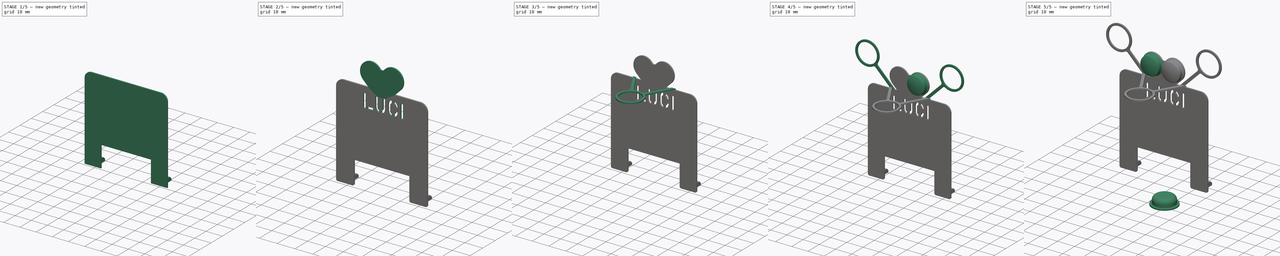
[diagram: build sequence overview — one tinted view per stage of 5, left to right]
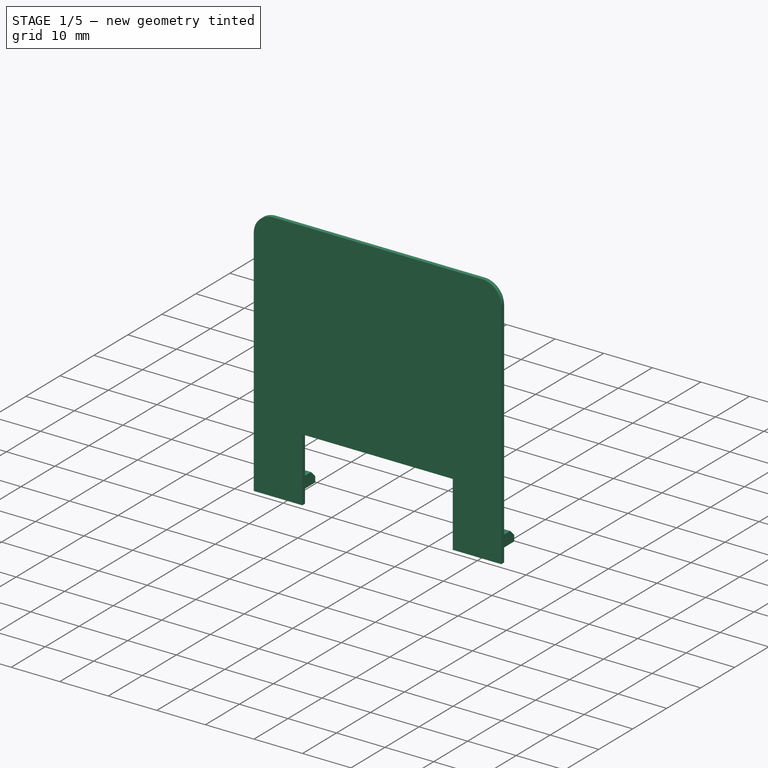
[diagram: stage 1 of 5 — iso view after this stage's code; geometry added in this stage tinted green]
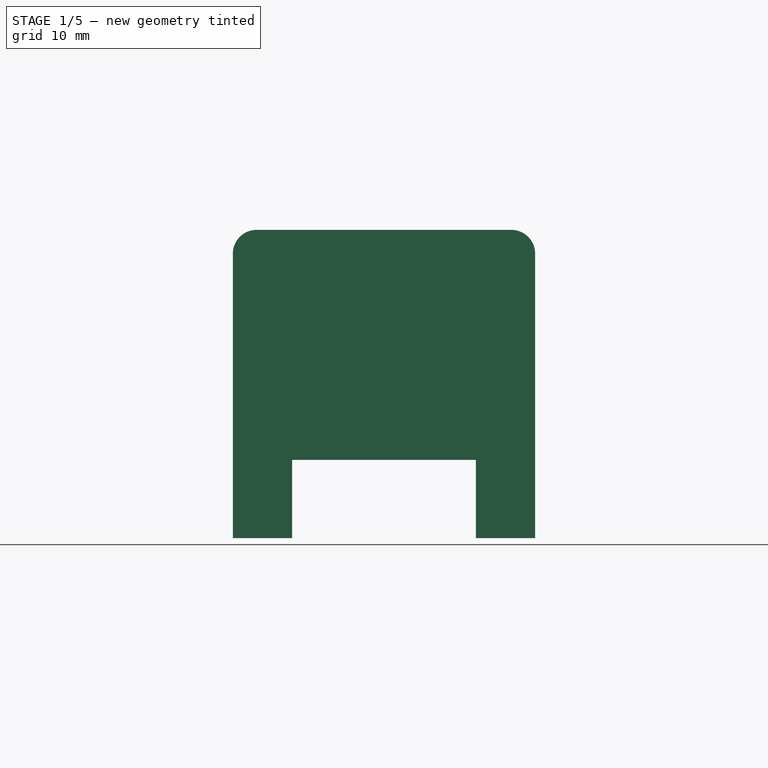
[diagram: stage 1 of 5 — front view after this stage's code; geometry added in this stage tinted green]
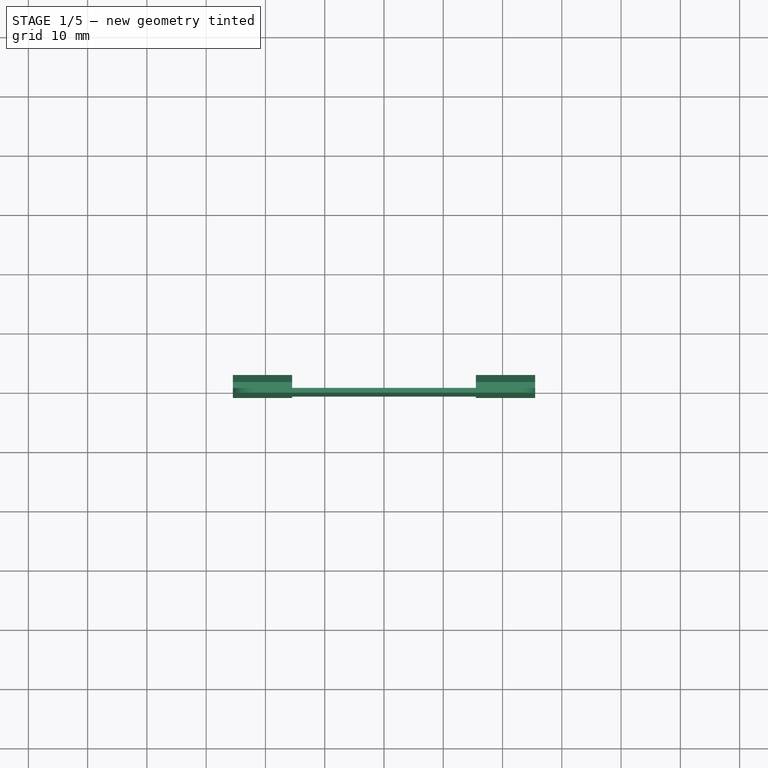
[diagram: stage 1 of 5 — top view after this stage's code; geometry added in this stage tinted green]
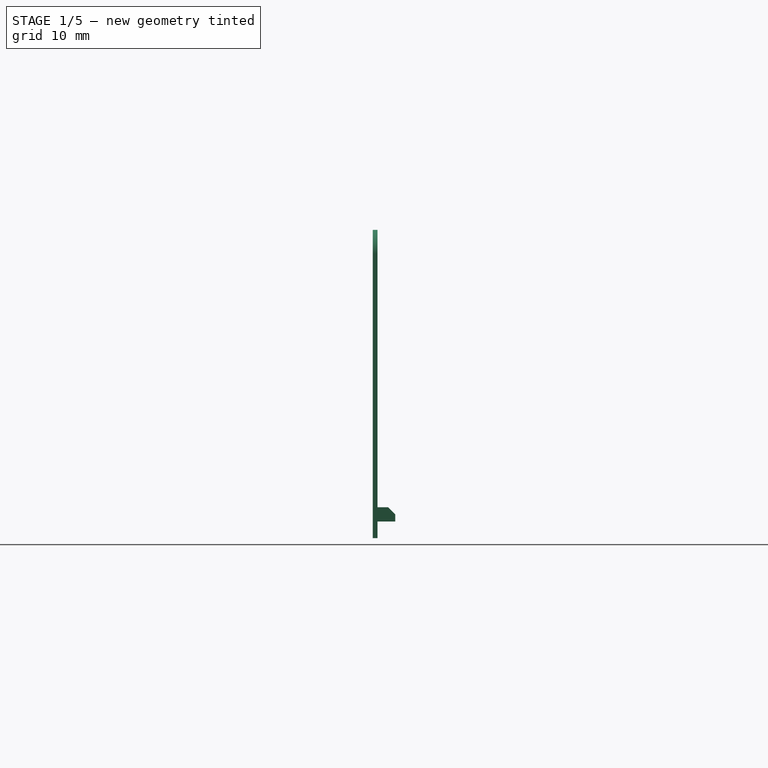
[diagram: stage 1 of 5 — right view after this stage's code; geometry added in this stage tinted green]
FCSTD DOCUMENT  (FreeCAD 0.20R29410 (Git))
Label: Escornaface-NeoPixel
License: Creative Commons Attribution-ShareAlike
LicenseURL: http://creativecommons.org/licenses/by-sa/4.0/
objects: Sketcher::SketchObject×7, Part::Feature×7, PartDesign::Pad×5, PartDesign::Body×4, PartDesign::Mirrored×2, PartDesign::Pocket×2, Part::Compound×2, PartDesign::FeatureBase×2, Part::Part2DObjectPython×1, PartDesign::Chamfer×1, PartDesign::Revolution×1, App::DocumentObjectGroup×1, PartDesign::Fillet×1
note: 45 computed .brp shape members not serialized (recipe doc carries the construction recipe); baked Part::Feature solids carry a one-line shape summary decoded from their .brp

FEATURE [Part::Part2DObjectPython] ShapeString  label="ShapeString-name"  # Draft 2D object (typed FeaturePython)
  AttachmentOffset = pos=(-20,41,0) rot=(0,0,1;0rad)
  FontFile = escornaface.otf
  Placement = pos=(-11.115,-1,52) rot=(1,0,0;1.5708rad)
  Size = 4
  String = luci
  Tracking = 0
  expr: .Placement.Base.x = .Shape.BoundBox.XLength / -2
FEATURE [Sketcher::SketchObject] Sketch044  label="Sketch-escornaface"
  FullyConstrained = true
  MapMode = 5
  Placement = pos=(0,0,0) rot=(1,0,0;1.5708rad)
  Support = -> [XZ_Plane002]
  sketch-geometry (10):
    g0: LineSegment StartX=-25.5 StartY=11.2 StartZ=0 EndX=-25.5 EndY=59.2 EndZ=0
    g1: ArcOfCircle CenterX=-21.5 CenterY=59.2 CenterZ=0 NormalX=0 NormalY=0 NormalZ=1 AngleXU=0 Radius=4 StartAngle=1.5708 EndAngle=3.14159
    g2: LineSegment StartX=-21.5 StartY=63.2 StartZ=0 EndX=21.5 EndY=63.2 EndZ=0
    g3: ArcOfCircle CenterX=21.5 CenterY=59.2 CenterZ=0 NormalX=0 NormalY=0 NormalZ=1 AngleXU=0 Radius=4 StartAngle=9e-16 EndAngle=1.5708
    g4: LineSegment StartX=25.5 StartY=59.2 StartZ=0 EndX=25.5 EndY=11.2 EndZ=0
    g5: LineSegment StartX=25.5 StartY=11.2 StartZ=0 EndX=15.5 EndY=11.2 EndZ=0
    g6: LineSegment StartX=15.5 StartY=11.2 StartZ=0 EndX=15.5 EndY=24.4 EndZ=0
    g7: LineSegment StartX=15.5 StartY=24.4 StartZ=0 EndX=-15.5 EndY=24.4 EndZ=0
    g8: LineSegment StartX=-15.5 StartY=24.4 StartZ=0 EndX=-15.5 EndY=11.2 EndZ=0
    g9: LineSegment StartX=-15.5 StartY=11.2 StartZ=0 EndX=-25.5 EndY=11.2 EndZ=0
  constraints (27):
    c: Vertical(g0)
    c: Tangent(g0,g1) = 1.5708
    c: Tangent(g1,g2) = 1.5708
    c: Tangent(g2,g3) = 1.5708
    c: Tangent(g3,g4) = 1.5708
    c: Coincident(g4,g5)
    c: Horizontal(g5)
    c: Coincident(g5,g6)
    c: Vertical(g6)
    c: Coincident(g6,g7)
    c: Horizontal(g7)
    c: Coincident(g7,g8)
    c: Vertical(g8)
    c: Coincident(g8,g9)
    c: Coincident(g9,g0)
    c: Horizontal(g9)
    c: Equal(g9,g5)
    c: Vertical(g4)
    c: Horizontal(g2)
    c: Symmetric(g8,g5,g-2)
    c: Equal(g1,g3)
    c: DistanceX(g0,g3) = 51
    c: DistanceY(g4,g2) = 52
    c: DistanceX(g5,g5) = 10
    c: DistanceY(g6,g6) = 13.2
    c: DistanceY(g5) = 11.2
    c: Radius(g1) = 4
FEATURE [PartDesign::Pad] Pad031  label="Pad-escornaface"
  Direction = (0,-1,-2e-16)
  Length = 0.8
  Length2 = 100
  Placement = pos=(0,0,0) rot=(1,0,0;1.5708rad)
  Profile = -> Sketch044
  Type = 0
FEATURE [Sketcher::SketchObject] Sketch046  label="Sketch-escornaface-leg-support"
  AttachmentOffset = pos=(0,0,15.5) rot=(0,0,1;0rad)
  ExternalGeometry = -> [Pad031]
  FullyConstrained = true
  MapMode = 5
  Placement = pos=(15.5,-3.4e-15,3.4e-15) rot=(0.57735,0.57735,0.57735;2.0944rad)
  Support = -> [YZ_Plane002]
  sketch-geometry (5):
    g0: LineSegment StartX=3 StartY=14 StartZ=0 EndX=0 EndY=14 EndZ=0
    g1: LineSegment StartX=0 StartY=14 StartZ=0 EndX=0 EndY=16.4 EndZ=0
    g2: LineSegment StartX=3 StartY=15.2 StartZ=0 EndX=3 EndY=14 EndZ=0
    g3: LineSegment StartX=0 StartY=16.4 StartZ=0 EndX=1.8 EndY=16.4 EndZ=0
    g4: LineSegment StartX=1.8 StartY=16.4 StartZ=0 EndX=3 EndY=15.2 EndZ=0
  constraints (15):
    c: Coincident(g0,g1)
    c: Coincident(g2,g0)
    c: Vertical(g1)
    c: Coincident(g3,g1)
    c: Horizontal(g3)
    c: PointOnObject(g1,g-2)
    c: DistanceY(g1,g1) = 2.4
    c: DistanceY(g-3,g0) = 2.8
    c: Horizontal(g0)
    c: DistanceX(g0,g0) = 3
    c: Vertical(g2)
    c: Coincident(g3,g4)
    c: Coincident(g2,g4)
    c: Angle(g4,g0) = 0.785398
    c: DistanceY(g4,g4) = 1.2
FEATURE [PartDesign::Pad] Pad032  label="Pad-escornaface-leg-support"
  BaseFeature = -> Pad031
  Direction = (1,-2e-16,3e-16)
  Length = 10
  Length2 = 10
  Placement = pos=(0,0,0) rot=(1,0,0;1.5708rad)
  Profile = -> Sketch046
  ReferenceAxis = -> Sketch046 [N_Axis]
  Refine = true
  Type = 0
FEATURE [PartDesign::Mirrored] Mirrored  label="Mirrored-escornaface-leg-support"
  BaseFeature = -> Pad032
  MirrorPlane = -> YZ_Plane002
  Originals = -> [Pad032]
  Placement = pos=(0,0,0) rot=(1,0,0;1.5708rad)
  Refine = true
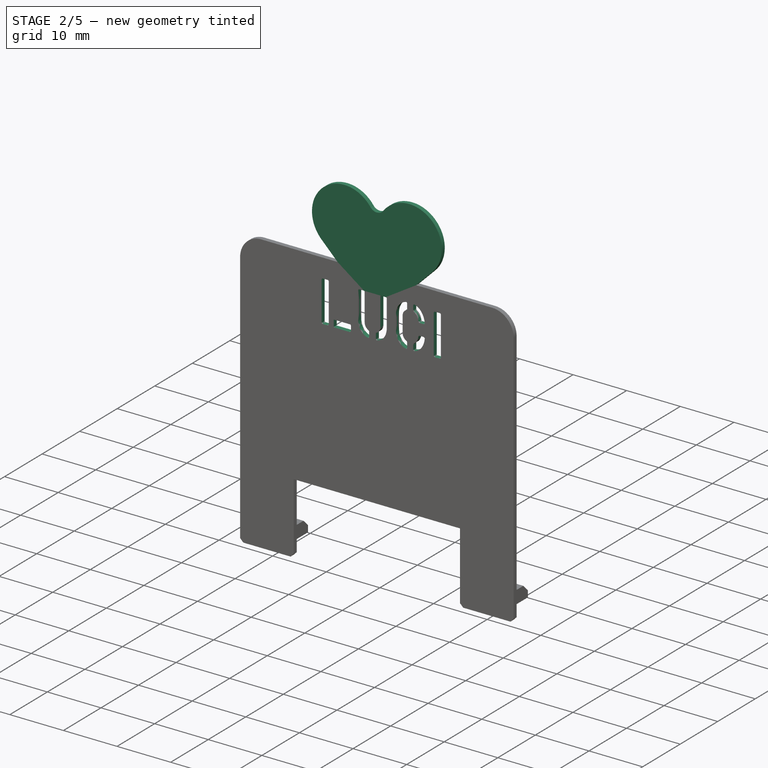
[diagram: stage 2 of 5 — iso view after this stage's code; geometry added in this stage tinted green]
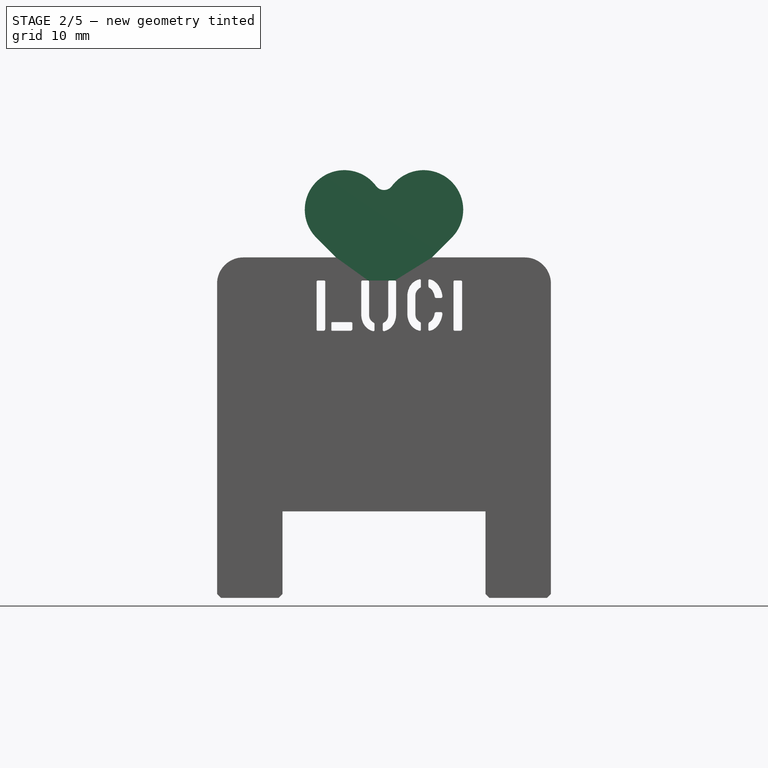
[diagram: stage 2 of 5 — front view after this stage's code; geometry added in this stage tinted green]
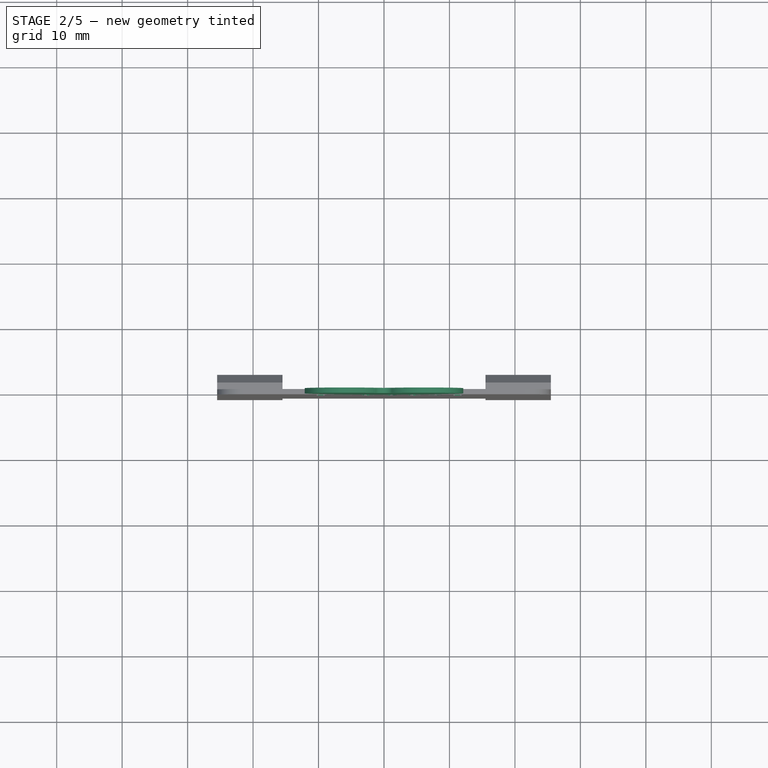
[diagram: stage 2 of 5 — top view after this stage's code; geometry added in this stage tinted green]
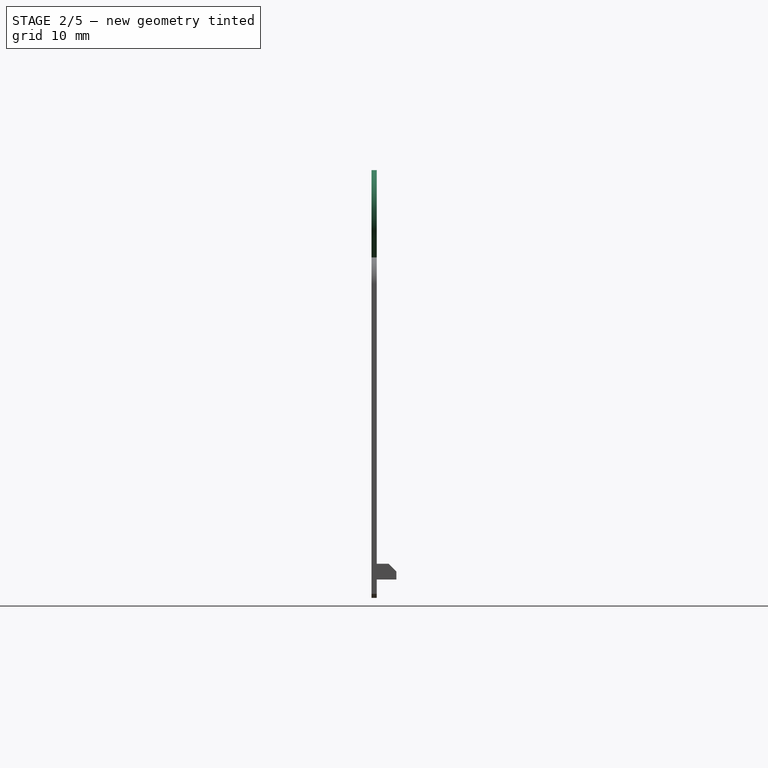
[diagram: stage 2 of 5 — right view after this stage's code; geometry added in this stage tinted green]
FEATURE [PartDesign::Chamfer] Chamfer007  label="Chamfer-legs-corners"
  Angle = 45
  Base = -> Mirrored [Edge52,Edge43,Edge23,Edge24]
  BaseFeature = -> Mirrored
  ChamferType = 0
  FlipDirection = false
  Placement = pos=(0,0,0) rot=(1,0,0;1.5708rad)
  Size = 0.6
  Size2 = 1
  SupportTransform = false
  UseAllEdges = false
FEATURE [PartDesign::Body] Body004005  label="Body-RGB-cap"
  Group = -> [Sketch,Revolution,Sketch021,Pocket]
  Origin = -> Origin012
  Placement = pos=(0,-20.55,64.2) rot=(0,0,1;0rad)
  Tip = -> Pocket
FEATURE [Part::Feature] Group001  label="neopixel"
  Placement = pos=(0,-20.55,62.75) rot=(0,0,1;0rad)
  shape: bbox 9 x 9 x 3.101 mm, 153 faces, 6 solids (baked)
FEATURE [Sketcher::SketchObject] Sketch005  label="Sketch-eyes-holder"
  FullyConstrained = true
  MapMode = 5
  Placement = pos=(0,-0.8,-2e-16) rot=(1,0,0;1.5708rad)
  Support = -> [Chamfer007]
  sketch-geometry (9):
    g0: LineSegment StartX=-7.12263 StartY=63 StartZ=0 EndX=-10.328 EndY=66.2054 EndZ=0
    g1: ArcOfCircle CenterX=-6.05 CenterY=70.4834 CenterZ=0 NormalX=0 NormalY=0 NormalZ=1 AngleXU=0 Radius=6.05 StartAngle=0.64129 EndAngle=3.92699
    g2: Circle CenterX=-6.05 CenterY=70.4834 CenterZ=0 NormalX=0 NormalY=0 NormalZ=1 AngleXU=0 Radius=6.05
    g3: Circle CenterX=6.05 CenterY=70.4834 CenterZ=0 NormalX=0 NormalY=0 NormalZ=1 AngleXU=0 Radius=6.05
    g4: LineSegment StartX=-6.05 StartY=70.4834 StartZ=0 EndX=6.05 EndY=70.4834 EndZ=0
    g5: ArcOfCircle CenterX=7.2409e-12 CenterY=75 CenterZ=0 NormalX=0 NormalY=0 NormalZ=1 AngleXU=0 Radius=1.5 StartAngle=3.78288 EndAngle=5.64189
    g6: ArcOfCircle CenterX=6.05 CenterY=70.4834 CenterZ=0 NormalX=0 NormalY=0 NormalZ=1 AngleXU=0 Radius=6.05 StartAngle=5.49779 EndAngle=8.78349
    g7: LineSegment StartX=10.328 StartY=66.2054 StartZ=0 EndX=7.12263 EndY=63 EndZ=0
    g8: LineSegment StartX=7.12263 StartY=63 StartZ=0 EndX=-7.12263 EndY=63 EndZ=0
  constraints (21):
    c: Tangent(g0,g1) = 1.5708
    c: Tangent(g3,g2)
    c: Equal(g2,g3)
    c: Diameter(g2) = 12.1
    c: Coincident(g4,g2)
    c: Coincident(g4,g3)
    c: Symmetric(g3,g2,g-2)
    c: Coincident(g1,g2)
    c: Tangent(g1,g5) = 1.5708
    c: PointOnObject(g5,g3)
    c: Tangent(g5,g6) = 1.5708
    c: Tangent(g6,g7) = 1.5708
    c: Coincident(g7,g8)
    c: Coincident(g8,g0)
    c: PointOnObject(g0,g2)
    c: Coincident(g6,g3)
    c: Perpendicular(g7,g0)
    c: Symmetric(g0,g7,g-2)
    c: Radius(g5) = 1.5
    c: DistanceY(g7,g5) = 12
    c: DistanceY(g7) = 63
FEATURE [PartDesign::Pad] Pad033  label="Pad-eyes-holder"
  BaseFeature = -> Chamfer007
  Direction = (0,-1,-2e-16)
  Length = 0.8
  Length2 = 10
  Placement = pos=(0,0,0) rot=(1,0,0;1.5708rad)
  Profile = -> Sketch005
  ReferenceAxis = -> Sketch005 [N_Axis]
  Refine = true
  Reversed = true
  Type = 0
FEATURE [PartDesign::Pocket] Pocket001  label="Pocket-name"
  BaseFeature = -> Pad033
  Direction = (0,1,-2e-16)
  Length = 5
  Length2 = 5
  Midplane = true
  Placement = pos=(0,0,0) rot=(1,0,0;1.5708rad)
  Profile = -> ShapeString
  ReferenceAxis = -> ShapeString [N_Axis]
  Type = 0
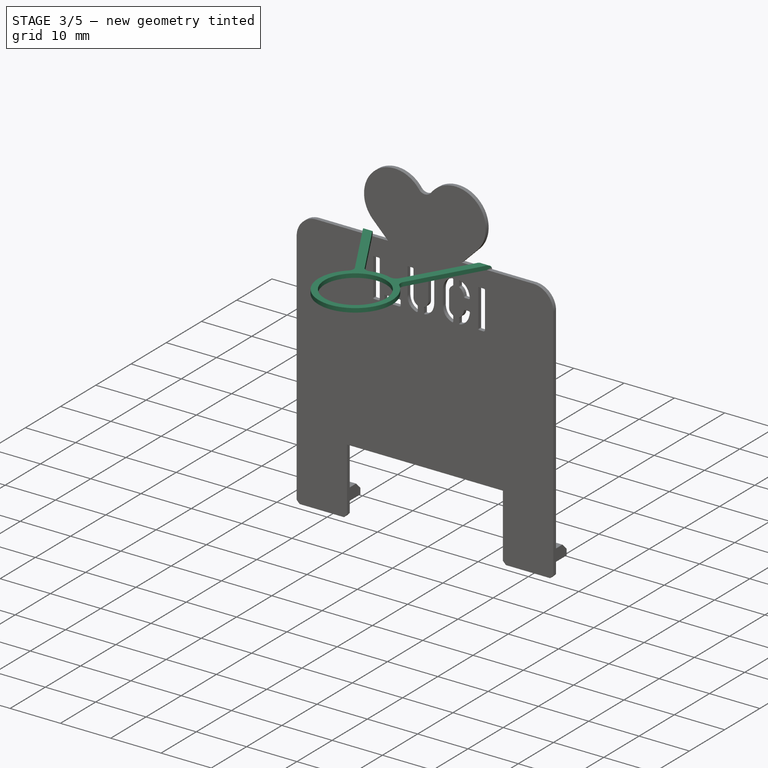
[diagram: stage 3 of 5 — iso view after this stage's code; geometry added in this stage tinted green]
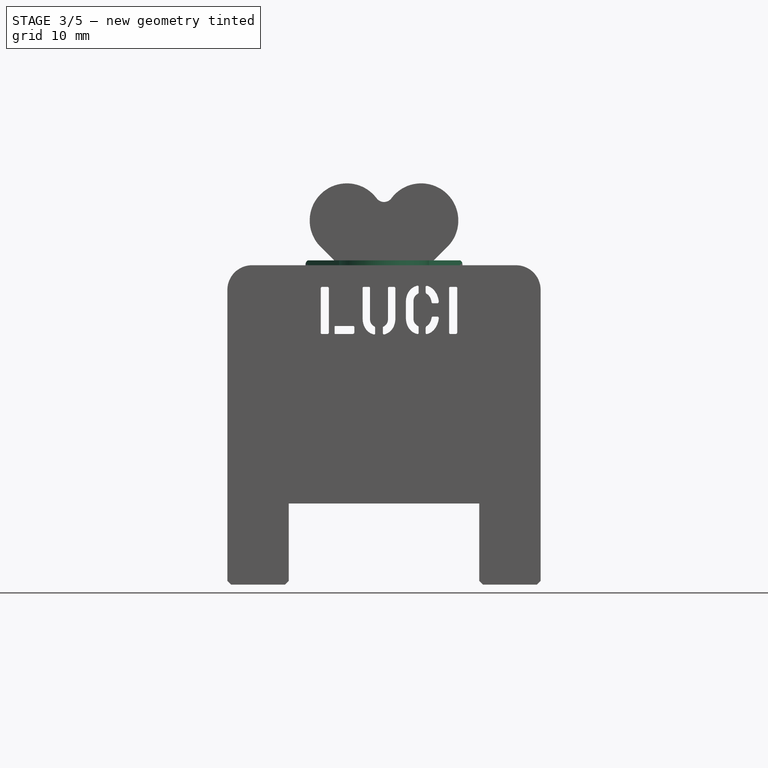
[diagram: stage 3 of 5 — front view after this stage's code; geometry added in this stage tinted green]
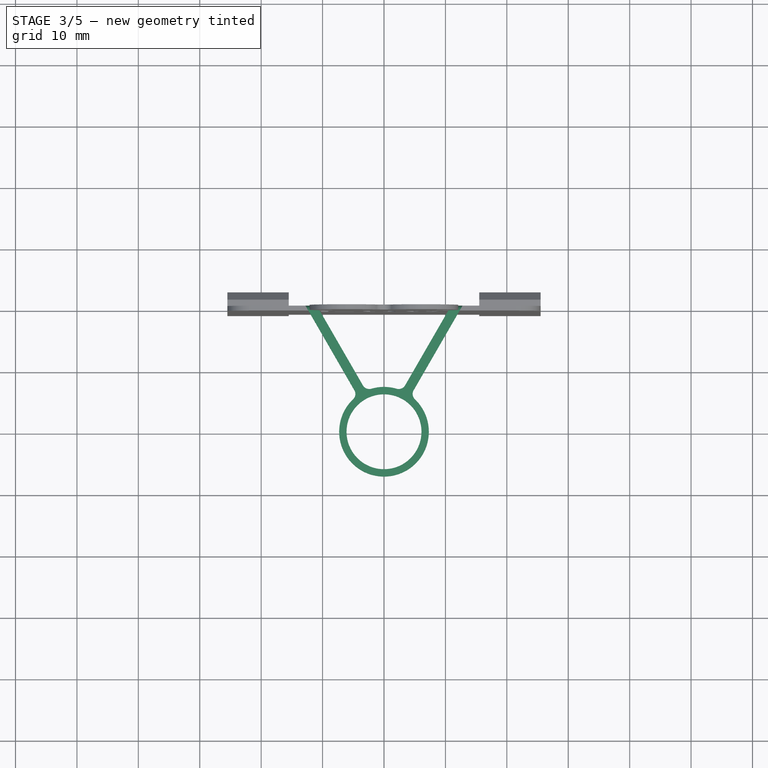
[diagram: stage 3 of 5 — top view after this stage's code; geometry added in this stage tinted green]
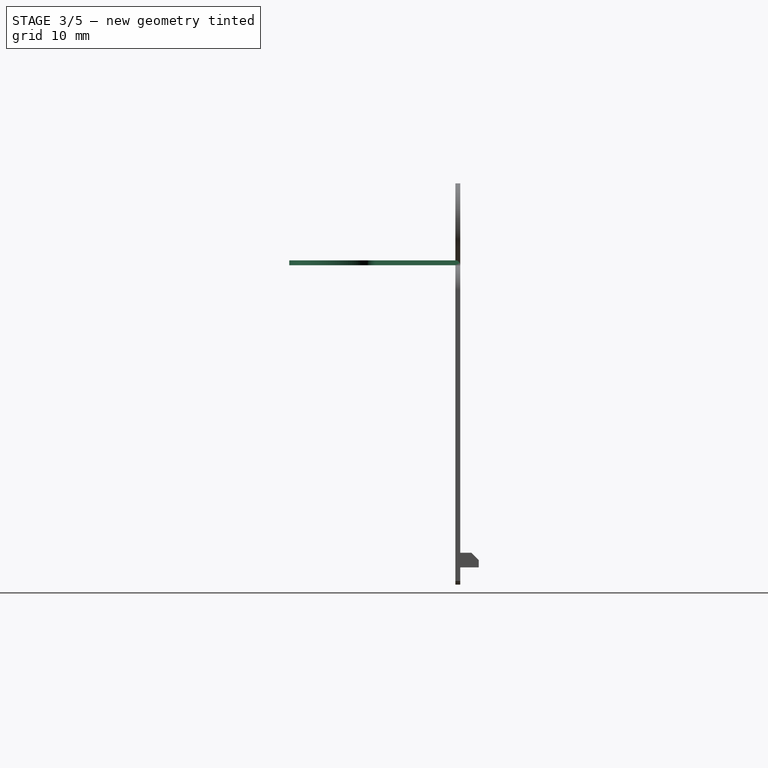
[diagram: stage 3 of 5 — right view after this stage's code; geometry added in this stage tinted green]
FEATURE [PartDesign::Body] Body  label="Body-Final"
  BaseFeature = -> Body003004002007001011003
  Group = -> [Clone,Sketch006,Pad]
  Origin = -> Origin
  Tip = -> Pad
FEATURE [PartDesign::FeatureBase] Clone001  label="Clone-base-Simul"
  BaseFeature = -> Body003004002007001011003
FEATURE [PartDesign::Pad] Pad034  label="Pad-NeoPixel-holder-simul"
  BaseFeature = -> Clone001
  Direction = (0,0,1)
  Length = 0.8
  Length2 = 10
  Profile = -> Sketch047
  ReferenceAxis = -> Sketch047 [N_Axis]
  Type = 0
FEATURE [PartDesign::Mirrored] Mirrored001  label="Mirrored-NeoPixel-holder-simul"
  BaseFeature = -> Pad034
  MirrorPlane = -> YZ_Plane013
  Originals = -> [Pad034]
FEATURE [PartDesign::Fillet] Fillet
  Base = -> Mirrored001 [Edge337,Edge340]
  BaseFeature = -> Mirrored001
  Radius = 0.79
  SupportTransform = false
  UseAllEdges = false
FEATURE [PartDesign::Body] Body003004002007001011007  label="Body-Simul"
  BaseFeature = -> Body003004002007001011003
  Group = -> [Clone001,Sketch047,Pad034,Mirrored001,Fillet]
  Origin = -> Origin013
  Tip = -> Fillet
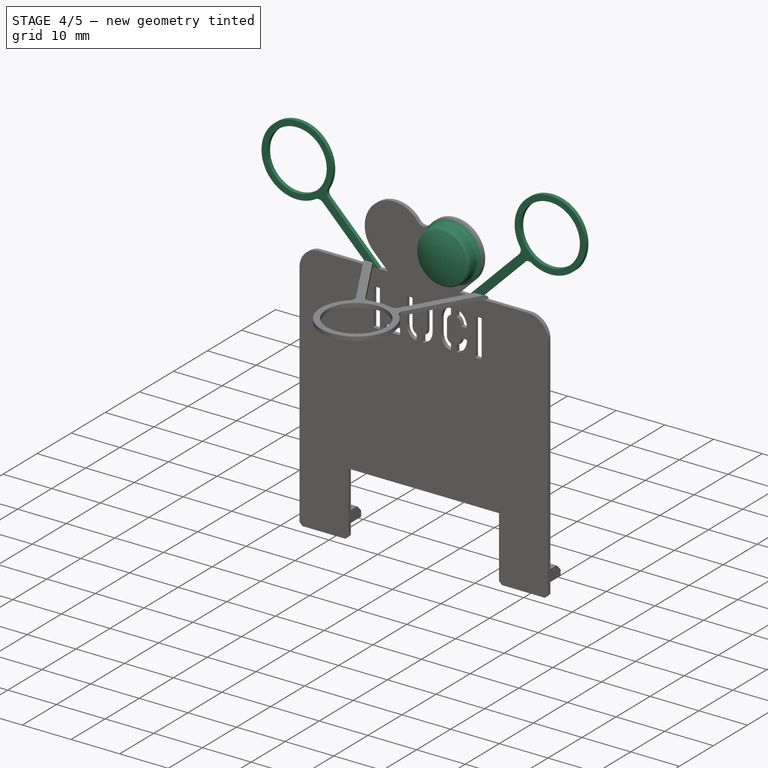
[diagram: stage 4 of 5 — iso view after this stage's code; geometry added in this stage tinted green]
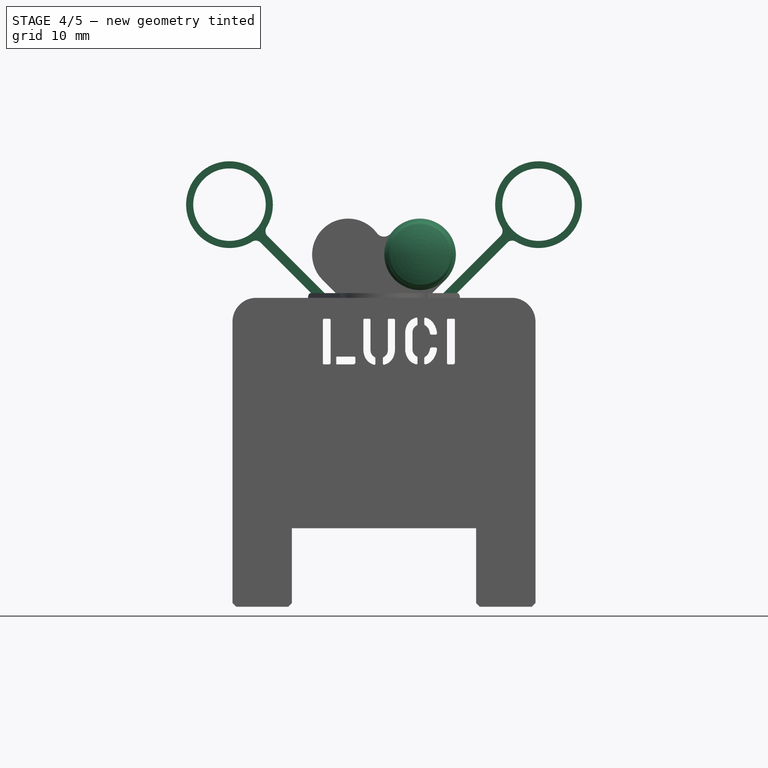
[diagram: stage 4 of 5 — front view after this stage's code; geometry added in this stage tinted green]
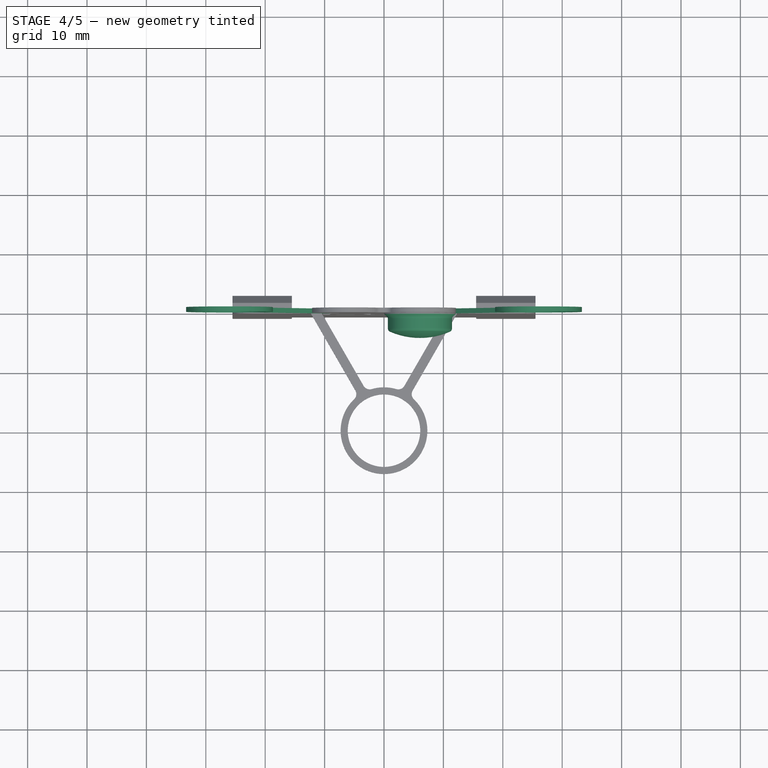
[diagram: stage 4 of 5 — top view after this stage's code; geometry added in this stage tinted green]
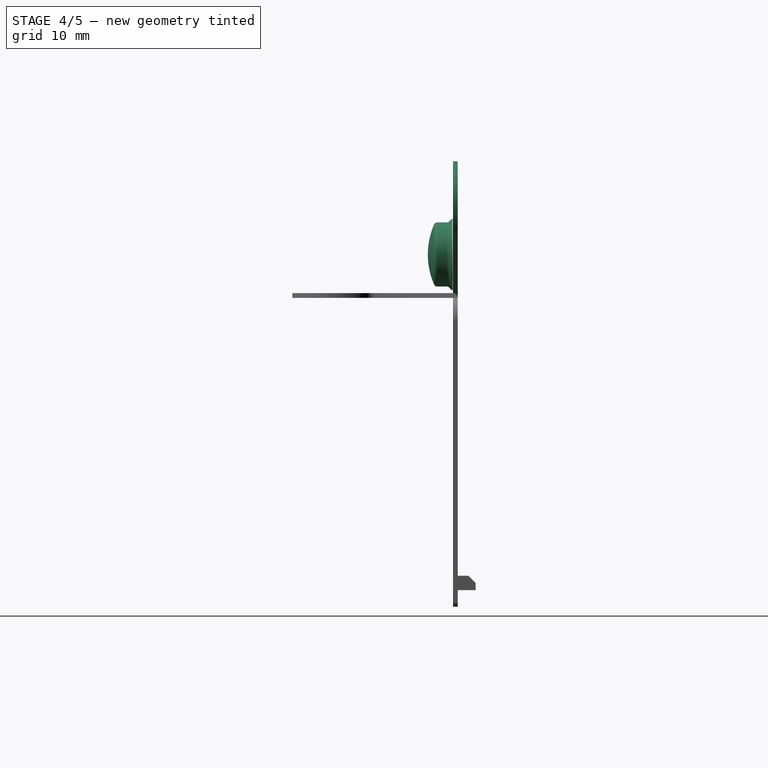
[diagram: stage 4 of 5 — right view after this stage's code; geometry added in this stage tinted green]
FEATURE [Part::Feature] Body003004002007001011004  label="cover001"
  shape: bbox 12.99 x 12.99 x 4 mm, 6 faces (baked)
FEATURE [Part::Feature] Body003004002007001011005  label="base001"
  shape: bbox 12 x 12 x 0.2 mm, 3 faces (baked)
FEATURE [Part::Feature] Body003004002007001011006  label="pupil001"
  shape: bbox 5.953 x 5.953 x 0.6 mm, 5 faces (baked)
FEATURE [Part::Compound] Compound001  label="left-eye"
  Links = -> [Body003004002007001011004,Body003004002007001011005,Body003004002007001011006]
  Placement = pos=(6.05,-1.05,70.5) rot=(1,0,0;1.5708rad)
FEATURE [Sketcher::SketchObject] Sketch047  label="Sketch-NeoPixel-holder-simul"
  AttachmentOffset = pos=(0,0,63.2) rot=(0,0,1;0rad)
  FullyConstrained = true
  MapMode = 5
  Placement = pos=(0,0,63.2) rot=(0,0,1;0rad)
  Support = -> [XY_Plane013]
  sketch-geometry (10):
    g0: LineSegment StartX=12.3235 StartY=-0.8 StartZ=0 EndX=4.8235 EndY=-13.7904 EndZ=0
    g1: ArcOfCircle CenterX=0 CenterY=-20.5449 CenterZ=0 NormalX=0 NormalY=0 NormalZ=1 AngleXU=0 Radius=7.3 StartAngle=1.28472 EndAngle=7.09286
    g2: LineSegment StartX=3.43786 StartY=-12.9904 StartZ=0 EndX=10.9379 EndY=0 EndZ=0
    g3: LineSegment StartX=10.9379 StartY=0 StartZ=0 EndX=12.3235 EndY=-0.8 EndZ=0
    g4: Circle CenterX=0 CenterY=-20.5449 CenterZ=0 NormalX=0 NormalY=0 NormalZ=1 AngleXU=0 Radius=6.1
    g5: ArcOfCircle CenterX=2.39863 CenterY=-12.3904 CenterZ=0 NormalX=0 NormalY=0 NormalZ=1 AngleXU=0 Radius=1.2 StartAngle=4.42631 EndAngle=5.75959
    g6: ArcOfCircle CenterX=5.86273 CenterY=-14.3904 CenterZ=0 NormalX=0 NormalY=0 NormalZ=1 AngleXU=0 Radius=1.2 StartAngle=2.61799 EndAngle=3.95127
    g7: LineSegment StartX=0 StartY=-20.5449 StartZ=0 EndX=11.6307 EndY=-0.4 EndZ=0
    g8: LineSegment StartX=10.9379 StartY=0 StartZ=0 EndX=12.7854 EndY=0 EndZ=0
    g9: LineSegment StartX=12.7854 StartY=0 StartZ=0 EndX=12.3235 EndY=-0.8 EndZ=0
  constraints (26):
    c: Coincident(g2,g3)
    c: Coincident(g3,g0)
    c: Radius(g4) = 6.1
    c: Radius(g1) = 7.3
    c: Tangent(g1,g5) = 1.5708
    c: Tangent(g2,g5) = -1.5708
    c: Tangent(g1,g6) = 1.5708
    c: Tangent(g0,g6) = -1.5708
    c: Equal(g6,g5)
    c: Radius(g6) = 1.2
    c: Perpendicular(g2,g3)
    c: Coincident(g1,g4)
    c: Coincident(g7,g1)
    c: PointOnObject(g7,g3)
    c: Distance(g3) = 1.6
    c: Distance(g0) = 15
    c: Symmetric(g0,g2,g7)
    c: Perpendicular(g3,g0)
    c: Coincident(g2,g8)
    c: PointOnObject(g8,g-1)
    c: Coincident(g8,g9)
    c: Coincident(g9,g0)
    c: Horizontal(g8)
    c: PointOnObject(g1,g-2)
    c: DistanceY(g0,g2) = 0.8
    c: Parallel(g9,g0)
FEATURE [App::DocumentObjectGroup] Group  label="elements"
  Group = -> [Group001,Compound,Compound001]
FEATURE [PartDesign::FeatureBase] Clone  label="Clone-base-Final"
  BaseFeature = -> Body003004002007001011003
FEATURE [Sketcher::SketchObject] Sketch006  label="Sketch-NeoPixel-holders"
  FullyConstrained = true
  MapMode = 5
  Placement = pos=(0,-0.8,2e-16) rot=(1,0,0;1.5708rad)
  Support = -> [Clone]
  sketch-geometry (16):
    g0: LineSegment StartX=9 StartY=63 StartZ=0 EndX=19.6066 EndY=73.6066 EndZ=0
    g1: ArcOfCircle CenterX=26.0139 CenterY=78.8826 CenterZ=0 NormalX=0 NormalY=0 NormalZ=1 AngleXU=0 Radius=7.3 StartAngle=4.16451 EndAngle=9.97265
    g2: LineSegment StartX=20.738 StartY=72.4752 StartZ=0 EndX=10.1314 EndY=61.8686 EndZ=0
    g3: LineSegment StartX=10.1314 StartY=61.8686 StartZ=0 EndX=9 EndY=63 EndZ=0
    g4: Circle CenterX=26.0139 CenterY=78.8826 CenterZ=0 NormalX=0 NormalY=0 NormalZ=1 AngleXU=0 Radius=6.1
    g5: ArcOfCircle CenterX=21.5865 CenterY=71.6267 CenterZ=0 NormalX=0 NormalY=0 NormalZ=1 AngleXU=0 Radius=1.2 StartAngle=1.02292 EndAngle=2.35619
    g6: ArcOfCircle CenterX=18.7581 CenterY=74.4551 CenterZ=0 NormalX=0 NormalY=0 NormalZ=1 AngleXU=0 Radius=1.2 StartAngle=5.49779 EndAngle=6.83106
    g7: LineSegment StartX=26.0139 StartY=78.8826 StartZ=0 EndX=9.56569 EndY=62.4343 EndZ=0
    g8: LineSegment StartX=-9 StartY=63 StartZ=0 EndX=-19.6066 EndY=73.6066 EndZ=0
    g9: ArcOfCircle CenterX=-26.0139 CenterY=78.8826 CenterZ=0 NormalX=0 NormalY=0 NormalZ=1 AngleXU=0 Radius=7.3 StartAngle=5.73531 EndAngle=11.5435
    g10: LineSegment StartX=-20.738 StartY=72.4752 StartZ=0 EndX=-10.1314 EndY=61.8686 EndZ=0
    g11: LineSegment StartX=-10.1314 StartY=61.8686 StartZ=0 EndX=-9 EndY=63 EndZ=0
    g12: Circle CenterX=-26.0139 CenterY=78.8826 CenterZ=0 NormalX=0 NormalY=0 NormalZ=1 AngleXU=0 Radius=6.1
    g13: ArcOfCircle CenterX=-21.5865 CenterY=71.6267 CenterZ=0 NormalX=0 NormalY=0 NormalZ=1 AngleXU=0 Radius=1.2 StartAngle=0.785398 EndAngle=2.11867
    g14: ArcOfCircle CenterX=-18.7581 CenterY=74.4551 CenterZ=0 NormalX=0 NormalY=0 NormalZ=1 AngleXU=0 Radius=1.2 StartAngle=2.59372 EndAngle=3.92699
    g15: LineSegment StartX=-26.0139 StartY=78.8826 StartZ=0 EndX=-9.56569 EndY=62.4343 EndZ=0
  constraints (41):
    c: Coincident(g2,g3)
    c: Coincident(g3,g0)
    c: Radius(g4) = 6.1
    c: Radius(g1) = 7.3
    c: Tangent(g1,g5) = 1.5708
    c: Tangent(g2,g5) = -1.5708
    c: Tangent(g1,g6) = 1.5708
    c: Tangent(g0,g6) = -1.5708
    c: Equal(g6,g5)
    c: Radius(g6) = 1.2
    c: Perpendicular(g2,g3)
    c: Coincident(g1,g4)
    c: Coincident(g7,g1)
    c: PointOnObject(g7,g3)
    c: Distance(g3) = 1.6
    c: Distance(g0) = 15
    c: Symmetric(g0,g2,g7)
    c: Perpendicular(g3,g0)
    c: Angle(g7) = -2.35619
    c: DistanceY(g0) = 63
    c: DistanceX(g0) = 9
    c: Coincident(g10,g11)
    c: Coincident(g11,g8)
    c: Radius(g12) = 6.1
    c: Radius(g9) = 7.3
    c: Tangent(g9,g13) = 1.5708
    c: Tangent(g10,g13) = 1.5708
    c: Tangent(g9,g14) = 1.5708
    c: Tangent(g8,g14) = 1.5708
    c: Equal(g14,g13)
    c: Radius(g14) = 1.2
    c: Perpendicular(g10,g11)
    c: Coincident(g9,g12)
    c: Coincident(g15,g9)
    c: PointOnObject(g15,g11)
    c: Symmetric(g8,g10,g15)
    c: Perpendicular(g11,g8)
    c: Angle(g15) = -0.785398
    c: Symmetric(g8,g0,g-2)
    c: Equal(g11,g3)
    c: Equal(g8,g0)
FEATURE [PartDesign::Pad] Pad  label="Pad-Neopixel-holders"
  BaseFeature = -> Clone
  Direction = (0,-1,2e-16)
  Length = 0.8
  Length2 = 10
  Profile = -> Sketch006
  ReferenceAxis = -> Sketch006 [N_Axis]
  Refine = true
  Reversed = true
  Type = 0
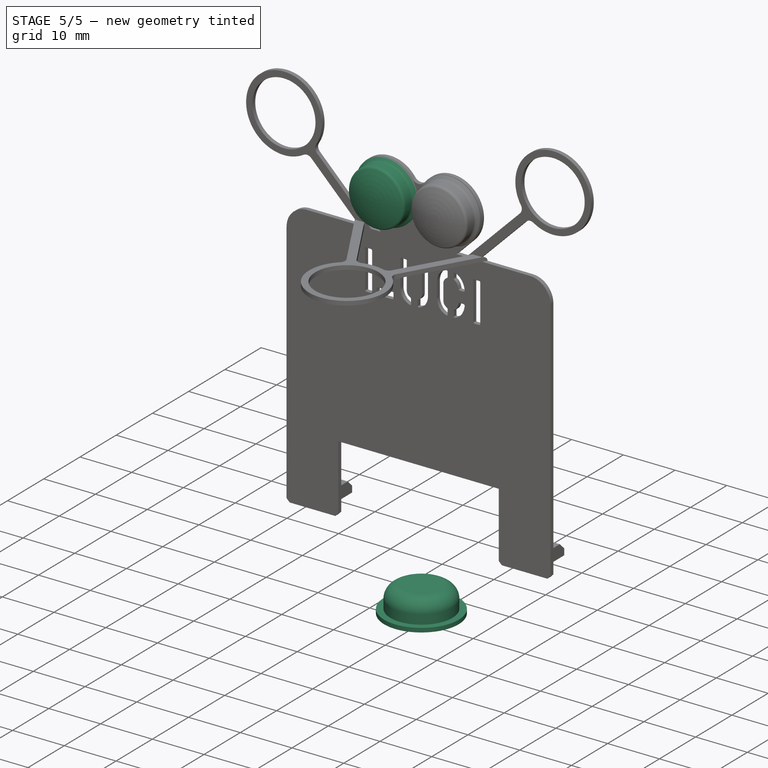
[diagram: stage 5 of 5 — iso view after this stage's code; geometry added in this stage tinted green]
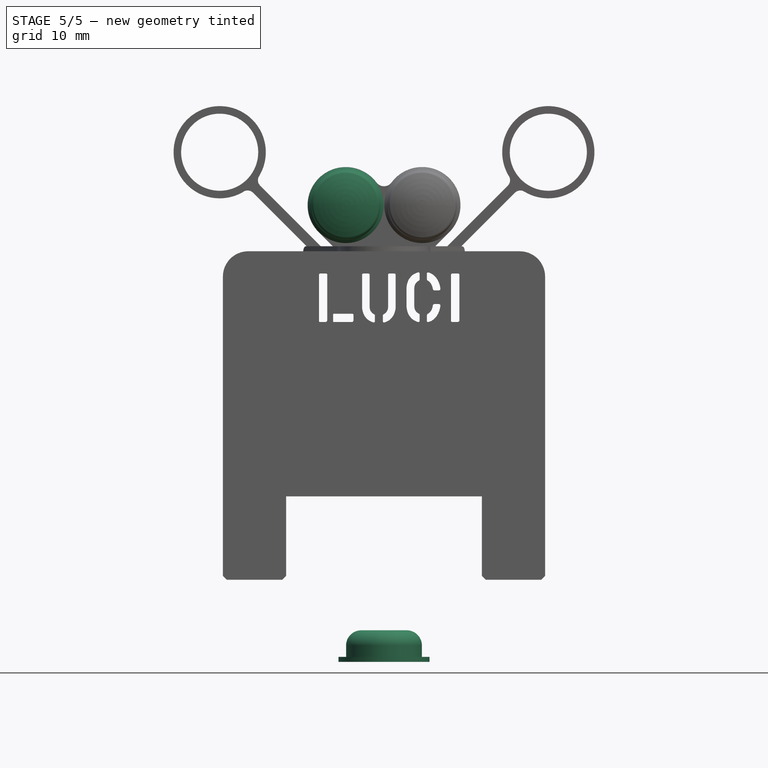
[diagram: stage 5 of 5 — front view after this stage's code; geometry added in this stage tinted green]
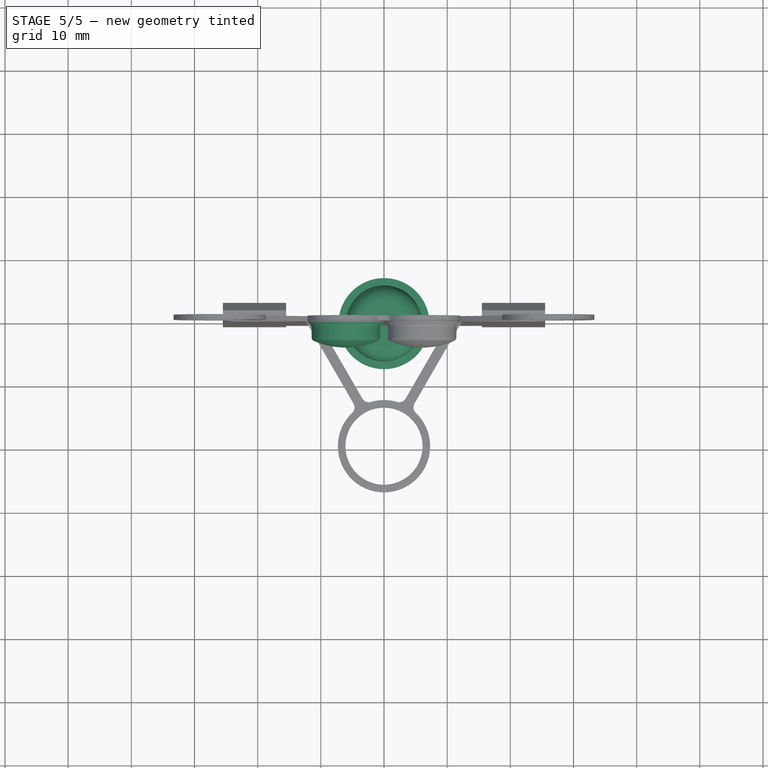
[diagram: stage 5 of 5 — top view after this stage's code; geometry added in this stage tinted green]
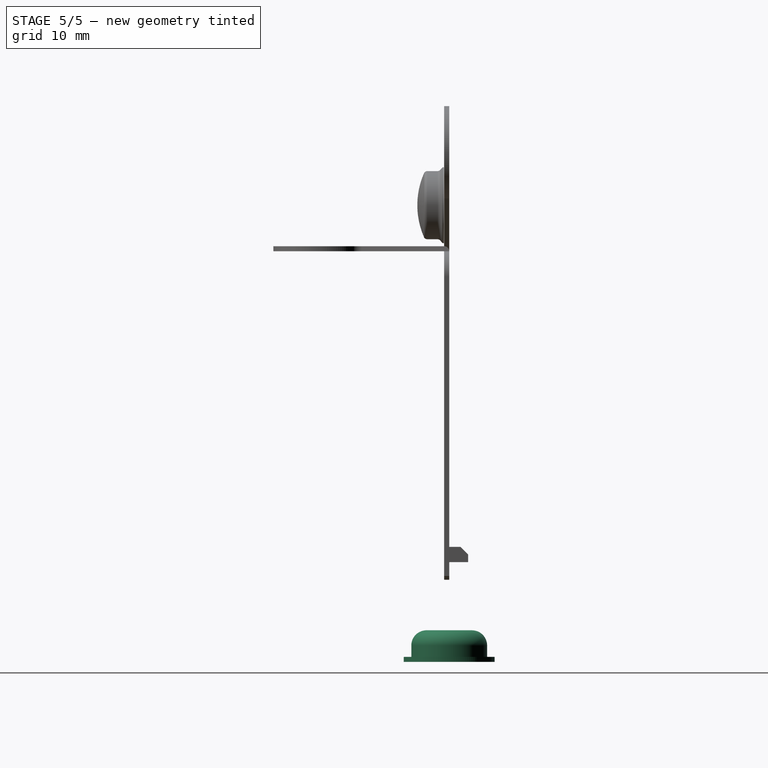
[diagram: stage 5 of 5 — right view after this stage's code; geometry added in this stage tinted green]
FEATURE [Sketcher::SketchObject] Sketch021  label="Sketch-neopixel-support-hole"
  FullyConstrained = true
  MapMode = 5
  Support = -> [XY_Plane012]
  sketch-geometry (14):
    g0: LineSegment StartX=-3.8 StartY=-1 StartZ=0 EndX=-3.8 EndY=1 EndZ=0
    g1: LineSegment StartX=-3.8 StartY=1 StartZ=0 EndX=-2.7 EndY=1 EndZ=0
    g2: LineSegment StartX=-2.7 StartY=1 StartZ=0 EndX=-2.7 EndY=2.7 EndZ=0
    g3: LineSegment StartX=-2.7 StartY=2.7 StartZ=0 EndX=2.7 EndY=2.7 EndZ=0
    g4: LineSegment StartX=2.7 StartY=2.7 StartZ=0 EndX=2.7 EndY=1 EndZ=0
    g5: LineSegment StartX=2.7 StartY=1 StartZ=0 EndX=3.8 EndY=1 EndZ=0
    g6: LineSegment StartX=3.8 StartY=1 StartZ=0 EndX=3.8 EndY=-1 EndZ=0
    g7: LineSegment StartX=3.8 StartY=-1 StartZ=0 EndX=2.7 EndY=-1 EndZ=0
    g8: LineSegment StartX=2.7 StartY=-1 StartZ=0 EndX=2.7 EndY=-2.7 EndZ=0
    g9: LineSegment StartX=2.7 StartY=-2.7 StartZ=0 EndX=-2.7 EndY=-2.7 EndZ=0
    g10: LineSegment StartX=-2.7 StartY=-2.7 StartZ=0 EndX=-2.7 EndY=-1 EndZ=0
    g11: LineSegment StartX=-2.7 StartY=-1 StartZ=0 EndX=-3.8 EndY=-1 EndZ=0
    g12: Circle CenterX=0 CenterY=0 CenterZ=0 NormalX=0 NormalY=0 NormalZ=1 AngleXU=0 Radius=4.72938
    g13: LineSegment StartX=0 StartY=0 StartZ=0 EndX=4.57366 EndY=-1.20359 EndZ=0
  constraints (39):
    c: Vertical(g0)
    c: Coincident(g0,g1)
    c: Horizontal(g1)
    c: Coincident(g1,g2)
    c: Vertical(g2)
    c: Coincident(g2,g3)
    c: Horizontal(g3)
    c: Coincident(g3,g4)
    c: Vertical(g4)
    c: Coincident(g4,g5)
    c: Horizontal(g5)
    c: Coincident(g5,g6)
    c: Vertical(g6)
    c: Coincident(g6,g7)
    c: Horizontal(g7)
    c: Coincident(g7,g8)
    c: Vertical(g8)
    c: Coincident(g8,g9)
    c: Horizontal(g9)
    c: Coincident(g9,g10)
    c: Vertical(g10)
    c: Coincident(g10,g11)
    c: Horizontal(g11)
    c: Coincident(g0,g11)
    c: PointOnObject(g4,g8)
    c: PointOnObject(g10,g7)
    c: Equal(g10,g2)
    c: Equal(g1,g5)
    c: DistanceY(g0,g0) = 2
    c: Symmetric(g1,g10,g-1)
    c: Symmetric(g1,g4,g-2)
    c: DistanceX(g11,g11) = 1.1
    c: DistanceY(g2,g2) = 1.7
    c: DistanceX(g3,g3) = 5.4
    c: Coincident(g12,g-1)
    c: Coincident(g13,g12)
    c: PointOnObject(g13,g12)
    c: PointOnObject(g6,g13)
    c: Distance(g6,g13) = 0.8
FEATURE [Sketcher::SketchObject] Sketch  label="Sketch-bubble-profile"
  FullyConstrained = true
  MapMode = 5
  Placement = pos=(0,0,0) rot=(1,0,0;1.5708rad)
  Support = -> [XZ_Plane012]
  sketch-geometry (10):
    g0: LineSegment StartX=4.8 StartY=-1.8 StartZ=0 EndX=7.2 EndY=-1.8 EndZ=0
    g1: LineSegment StartX=4.8 StartY=-1.8 StartZ=0 EndX=4.8 EndY=0 EndZ=0
    g2: LineSegment StartX=4.8 StartY=0 StartZ=0 EndX=0 EndY=0 EndZ=0
    g3: ArcOfCircle CenterX=3.6 CenterY=0.8 CenterZ=0 NormalX=0 NormalY=0 NormalZ=1 AngleXU=0 Radius=2.4 StartAngle=1e-16 EndAngle=1.5708
    g4: LineSegment StartX=6 StartY=0.8 StartZ=0 EndX=6 EndY=-1 EndZ=0
    g5: LineSegment StartX=3.6 StartY=3.2 StartZ=0 EndX=0 EndY=3.2 EndZ=0
    g6: LineSegment StartX=0 StartY=-1.4 StartZ=0 EndX=3.6 EndY=3.2 EndZ=0
    g7: LineSegment StartX=0 StartY=3.2 StartZ=0 EndX=0 EndY=0 EndZ=0
    g8: LineSegment StartX=6 StartY=-1 StartZ=0 EndX=7.2 EndY=-1 EndZ=0
    g9: LineSegment StartX=7.2 StartY=-1 StartZ=0 EndX=7.2 EndY=-1.8 EndZ=0
  constraints (28):
    c: Horizontal(g0)
    c: PointOnObject(g1,g-1)
    c: Vertical(g1)
    c: Coincident(g1,g2)
    c: Coincident(g2,g-1)
    c: Coincident(g0,g1)
    c: DistanceY(g0) = -1.8
    c: DistanceX(g2,g2) = 4.8
    c: Tangent(g3,g4) = 1.5708
    c: Radius(g3) = 2.4
    c: Tangent(g3,g5) = -1.5708
    c: Horizontal(g5)
    c: Vertical(g4)
    c: Coincident(g6,g3)
    c: Coincident(g7,g5)
    c: Coincident(g7,g2)
    c: Vertical(g7)
    c: DistanceY(g6) = -1.4
    c: PointOnObject(g6,g-2)
    c: DistanceY(g0,g3) = 5
    c: Horizontal(g8)
    c: Coincident(g8,g9)
    c: Vertical(g9)
    c: Coincident(g4,g8)
    c: DistanceX(g8,g8) = 1.2
    c: DistanceY(g9,g9) = 0.8
    c: DistanceX(g0,g4) = 1.2
    c: Coincident(g0,g9)
FEATURE [PartDesign::Revolution] Revolution  label="Revolution-bubble"
  Angle = 360
  Axis = (0,-2e-16,1)
  Base = (0,0,0)
  Placement = pos=(0,0,0) rot=(1,0,0;1.5708rad)
  Profile = -> Sketch
  ReferenceAxis = -> Sketch [V_Axis]
  Reversed = true
FEATURE [PartDesign::Pocket] Pocket  label="Pocket-neopixel-support-hole"
  BaseFeature = -> Revolution
  Direction = (0,0,-1)
  Length = 1.8
  Length2 = 100
  Placement = pos=(0,0,0) rot=(1,0,0;1.5708rad)
  Profile = -> Sketch021
  Reversed = true
  Type = 0
FEATURE [PartDesign::Body] Body003004002007001011003  label="Body-escornaface-NeoPixel-base"
  Group = -> [Sketch044,Pad031,ShapeString,Sketch046,Pad032,Mirrored,Chamfer007,Sketch005,Pad033,Pocket001]
  Origin = -> Origin002
  Tip = -> Pocket001
FEATURE [Part::Feature] Body001001  label="cover"
  shape: bbox 12.99 x 12.99 x 4 mm, 6 faces (baked)
FEATURE [Part::Feature] Body002001  label="base"
  shape: bbox 12 x 12 x 0.2 mm, 3 faces (baked)
FEATURE [Part::Feature] Body003001  label="pupil"
  shape: bbox 5.953 x 5.953 x 0.6 mm, 5 faces (baked)
FEATURE [Part::Compound] Compound  label="right-eye"
  Links = -> [Body001001,Body002001,Body003001]
  Placement = pos=(-6.05,-1.05,70.5) rot=(1,0,0;1.5708rad)
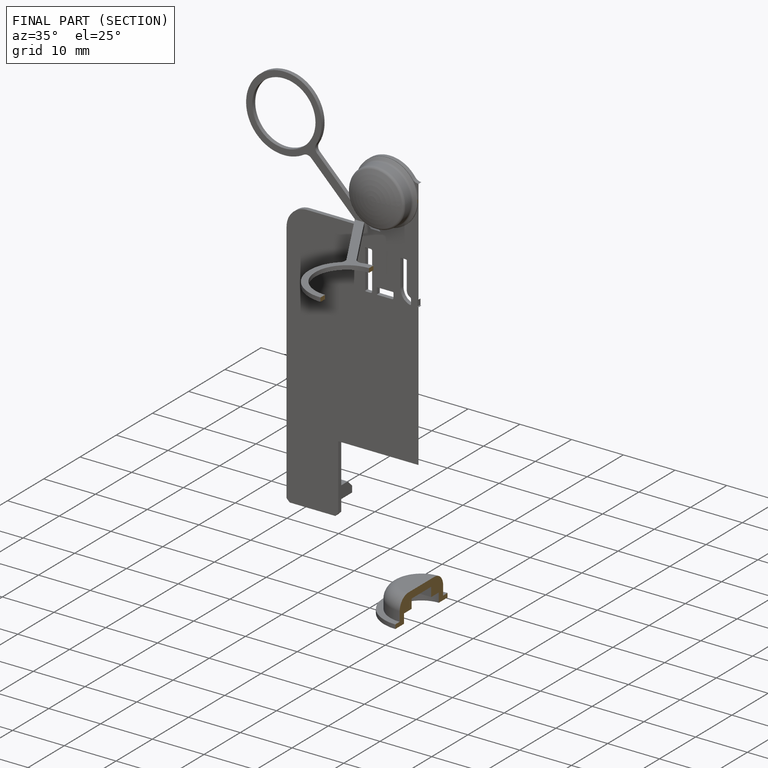
[diagram: finished part — half-section view (interior)]
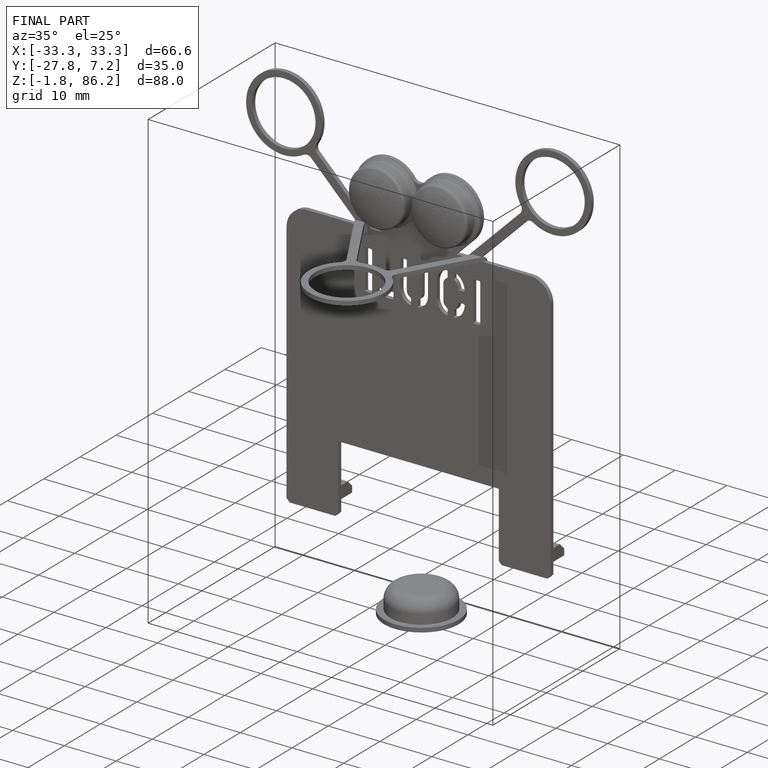
[diagram: finished part — iso view with bounding-box wireframe]
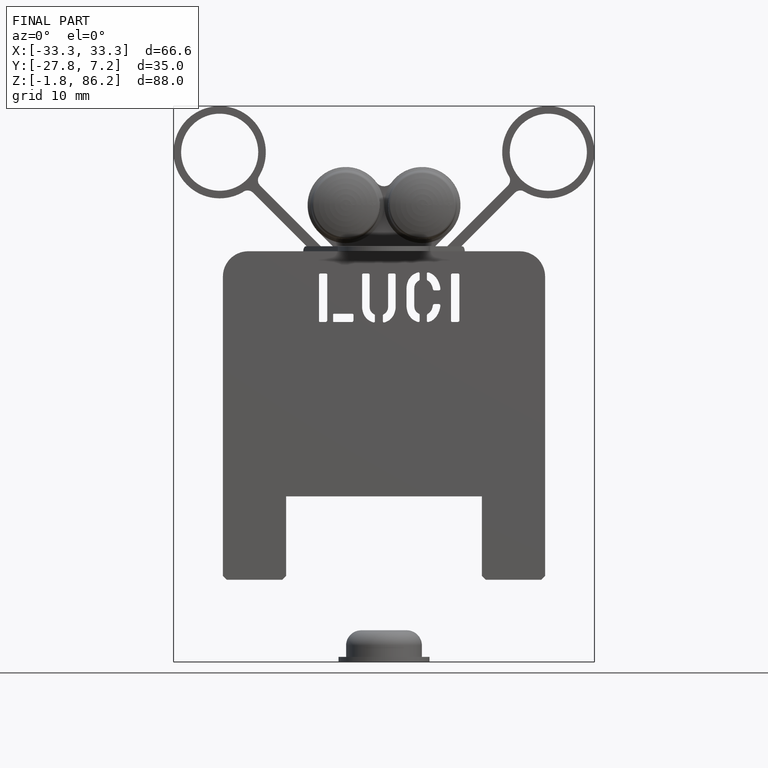
[diagram: finished part — front view with bounding-box wireframe]
